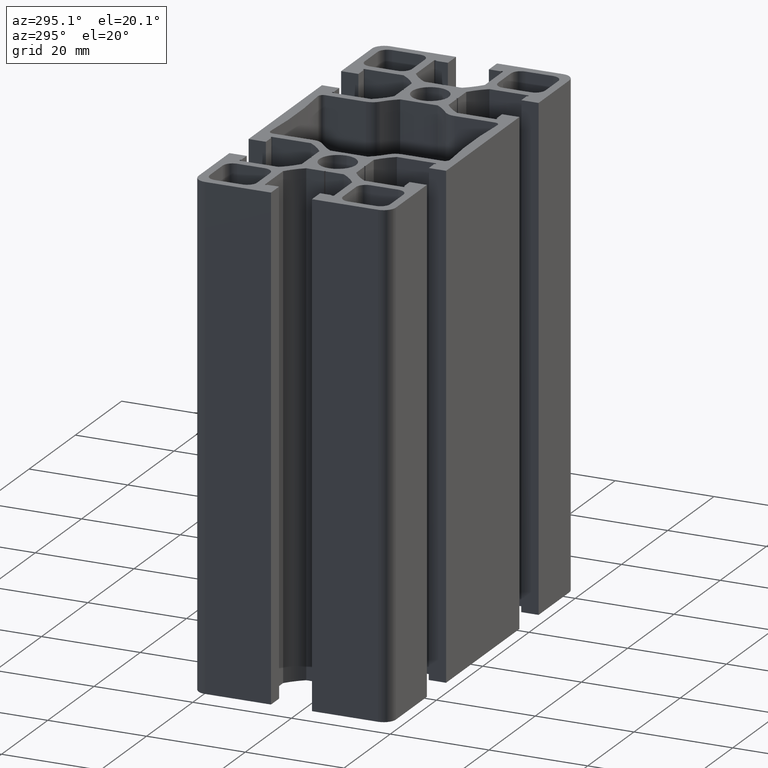
[diagram: clean part render]
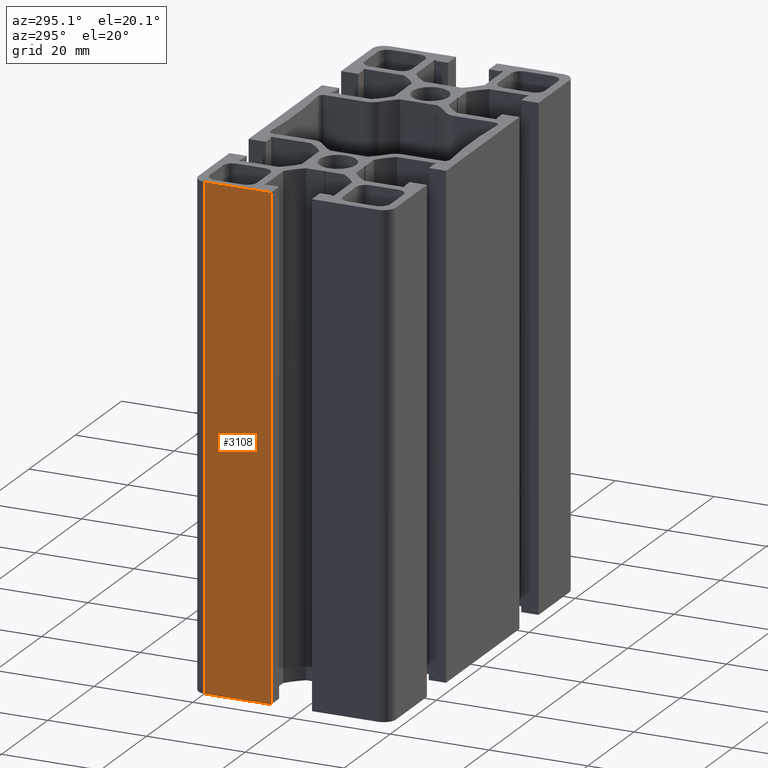
[diagram: same view with one face highlighted and labeled with its STEP entity id]
A machine part, auxiliary view. The second image highlights one B-rep face of the part: STEP entity #3108.
In plain terms, the highlighted planar face has unit normal (-1, 0, 0).
Its self-contained STEP definition (entity closure, byte-faithful):
#118=PLANE('',#3380);
#270=FACE_OUTER_BOUND('',#426,.T.);
#426=EDGE_LOOP('',(#2571,#2572,#2573,#2574));
#766=LINE('',#5148,#1100);
#767=LINE('',#5151,#1101);
#768=LINE('',#5153,#1102);
#769=LINE('',#5154,#1103);
#1100=VECTOR('',#4234,100.);
#1101=VECTOR('',#4237,13.3500000000001);
#1102=VECTOR('',#4238,13.3500000000001);
#1103=VECTOR('',#4239,100.);
#1527=VERTEX_POINT('',#5144);
#1528=VERTEX_POINT('',#5146);
#1529=VERTEX_POINT('',#5150);
#1530=VERTEX_POINT('',#5152);
#1974=EDGE_CURVE('',#1527,#1528,#766,.T.);
#1975=EDGE_CURVE('',#1529,#1527,#767,.T.);
#1976=EDGE_CURVE('',#1530,#1528,#768,.T.);
#1977=EDGE_CURVE('',#1529,#1530,#769,.T.);
#2571=ORIENTED_EDGE('',*,*,#1975,.T.);
#2572=ORIENTED_EDGE('',*,*,#1974,.T.);
#2573=ORIENTED_EDGE('',*,*,#1976,.F.);
#2574=ORIENTED_EDGE('',*,*,#1977,.F.);
#3108=ADVANCED_FACE('',(#270),#118,.T.);
#3380=AXIS2_PLACEMENT_3D('',#5149,#4235,#4236);
#4234=DIRECTION('',(0.,0.,1.));
#4235=DIRECTION('center_axis',(-1.,0.,0.));
#4236=DIRECTION('ref_axis',(0.,-1.,0.));
#4237=DIRECTION('',(0.,-1.,0.));
#4238=DIRECTION('',(0.,-1.,0.));
#4239=DIRECTION('',(0.,0.,1.));
#5144=CARTESIAN_POINT('',(-40.0000000000002,4.14999999999996,0.));
#5146=CARTESIAN_POINT('',(-40.0000000000002,4.14999999999996,100.));
#5148=CARTESIAN_POINT('',(-40.0000000000002,4.14999999999996,0.));
#5149=CARTESIAN_POINT('Origin',(-40.0000000000002,17.5000000000001,0.));
#5150=CARTESIAN_POINT('',(-40.0000000000002,17.5000000000001,0.));
#5151=CARTESIAN_POINT('',(-40.0000000000002,17.5000000000001,0.));
#5152=CARTESIAN_POINT('',(-40.0000000000002,17.5000000000001,100.));
#5153=CARTESIAN_POINT('',(-40.0000000000002,17.5000000000001,100.));
#5154=CARTESIAN_POINT('',(-40.0000000000002,17.5000000000001,0.));